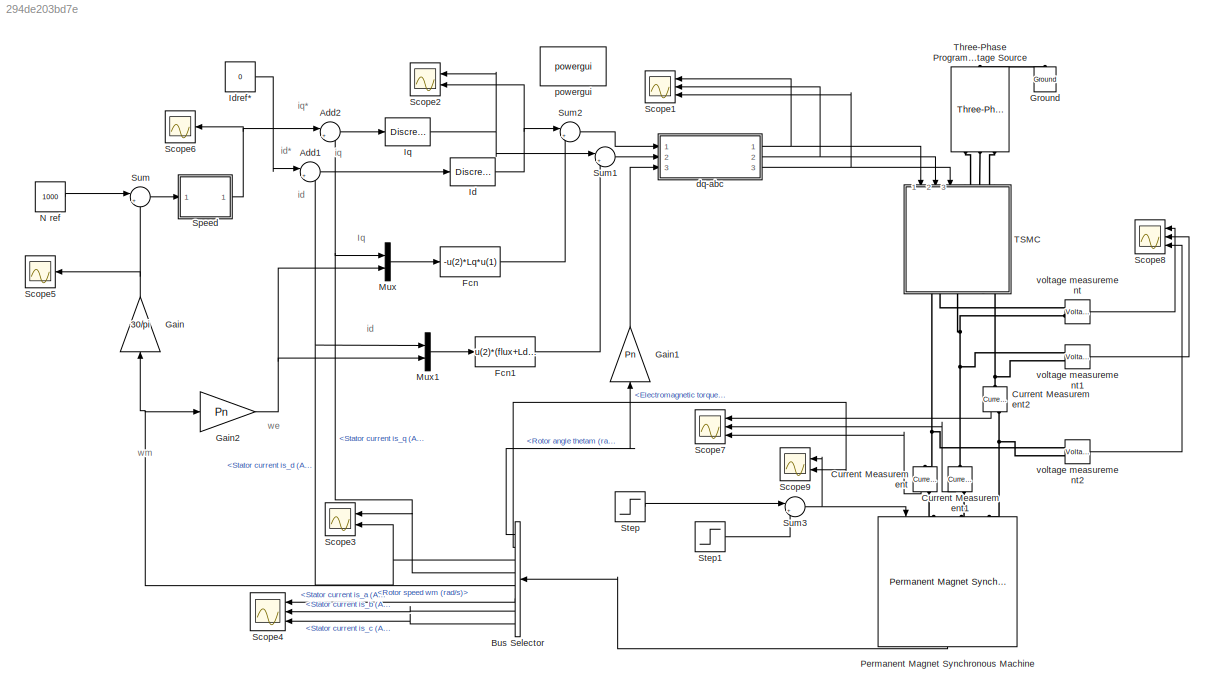
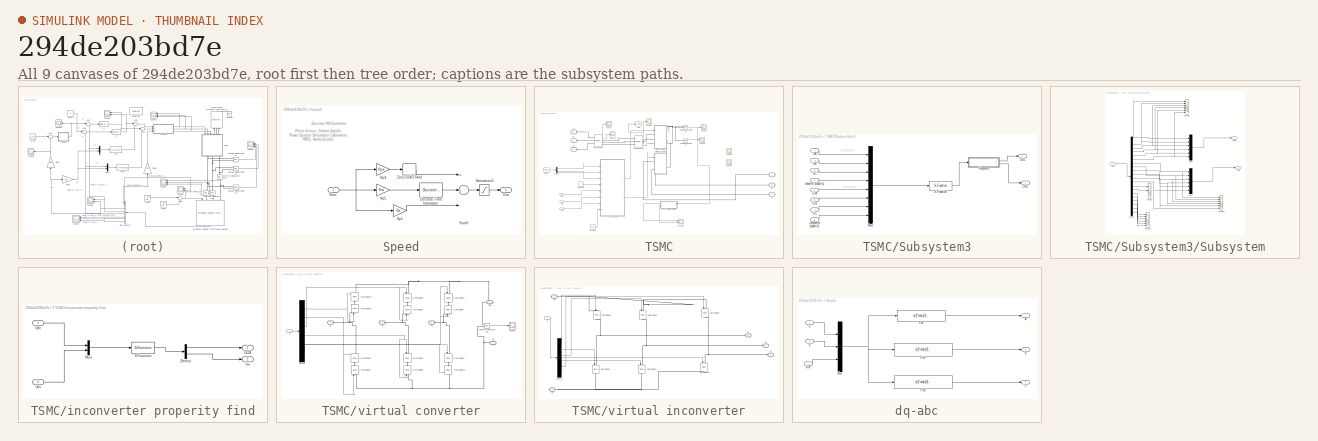
[diagram: thumbnail index - all 9 canvases of the model, root first then tree order]
MODEL slx_294de203bd7e
KIND model
CONFIG AbsTol = auto
CONFIG EnableMultiTasking = off
CONFIG FixedStep = auto
CONFIG InitFcn = Ts=10e-6;\nR=0.958;\nLd=5.25e-3;\nLq=12e-3;\nPn=4;\nflux=0.1827;
CONFIG MaxStep = auto
CONFIG MinStep = auto
CONFIG RelTol = 1e-4
CONFIG SampleTimeConstraint = Unconstrained
CONFIG Solver = ode15s
CONFIG SolverName = ode15s
CONFIG StartTime = 0.0
CONFIG StopTime = 0.6
BLOCK [Sum] Add1
  IconShape = round
  InputSameDT = off
  Inputs = |+-
  OutDataTypeStr = Inherit: Inherit via internal rule
  Ports = [2, 1]
  SaturateOnIntegerOverflow = off
BLOCK [Sum] Add2
  IconShape = round
  InputSameDT = off
  Inputs = |+-
  OutDataTypeStr = Inherit: Inherit via internal rule
  Ports = [2, 1]
  SaturateOnIntegerOverflow = off
BLOCK [BusSelector] Bus Selector
  OutputSignals = Rotor angle thetam (rad),Electromagnetic torque Te (N*m),Stator current is_d (A),Stator current is_q (A),Rotor speed wm (rad/s),Stator current is_a (A),Stator current is_b (A),Stator current is_c (A)
  Ports = [1, 8]
BLOCK [Reference] Current Measurement  REF=powerlib/Measurements/Current Measurement
  Ports = [0, 1, 0, 0, 0, 1, 1]
  SourceBlock = powerlib/Measurements/Current Measurement
  SourceType = Current Measurement
  UserDataPersistent = on
BLOCK [Reference] Current Measurement1  REF=powerlib/Measurements/Current Measurement
  Ports = [0, 1, 0, 0, 0, 1, 1]
  SourceBlock = powerlib/Measurements/Current Measurement
  SourceType = Current Measurement
  UserDataPersistent = on
BLOCK [Reference] Current Measurement2  REF=powerlib/Measurements/Current Measurement
  Ports = [0, 1, 0, 0, 0, 1, 1]
  SourceBlock = powerlib/Measurements/Current Measurement
  SourceType = Current Measurement
  UserDataPersistent = on
BLOCK [Fcn] Fcn
  Expr = -u(2)*Lq*u(1)
BLOCK [Fcn] Fcn1
  Expr = u(2)*(flux+Ld*u(1))
BLOCK [Gain] Gain
  Gain = 30/pi
  OutDataTypeStr = Inherit: Inherit via internal rule
  ParamDataTypeStr = Inherit: Inherit via internal rule
  SaturateOnIntegerOverflow = off
BLOCK [Gain] Gain1
  Gain = Pn
  OutDataTypeStr = Inherit: Inherit via internal rule
  ParamDataTypeStr = Inherit: Inherit via internal rule
  SaturateOnIntegerOverflow = off
BLOCK [Gain] Gain2
  Gain = Pn
  OutDataTypeStr = Inherit: Inherit via internal rule
  ParamDataTypeStr = Inherit: Inherit via internal rule
  SaturateOnIntegerOverflow = off
BLOCK [Reference] Ground  REF=powerlib/Elements/Ground
  Ports = [0, 0, 0, 0, 0, 1]
  SourceBlock = powerlib/Elements/Ground
  SourceType = Ground
BLOCK [Reference] Id  REF=powerlib_extras/Discrete 
Control Blocks/Discrete
PI Controller
  Ports = [1, 1]
  SourceBlock = powerlib_extras/Discrete \nControl Blocks/Discrete\nPI Controller
  SourceType = Discrete PI Controller
BLOCK [Constant] Idref*
  Value = 0
BLOCK [Reference] Iq  REF=powerlib_extras/Discrete 
Control Blocks/Discrete
PI Controller
  Ports = [1, 1]
  SourceBlock = powerlib_extras/Discrete \nControl Blocks/Discrete\nPI Controller
  SourceType = Discrete PI Controller
BLOCK [Mux] Mux
  DisplayOption = bar
  Inputs = 2
  Ports = [2, 1]
BLOCK [Mux] Mux1
  DisplayOption = bar
  Inputs = 2
  Ports = [2, 1]
BLOCK [Constant] N ref 
  Value = 1000
BLOCK [Reference] Permanent Magnet Synchronous Machine  REF=powerlib/Machines/Permanent Magnet
Synchronous Machine
  Ports = [1, 1, 0, 0, 0, 3]
  SourceBlock = powerlib/Machines/Permanent Magnet\nSynchronous Machine
  SourceType = Permanent Magnet Synchronous Machine
BLOCK [Scope] Scope1
  NumInputPorts = 3
  Ports = [3]
  ScopeSpecificationString = Simulink.scopes.TimeScopeBlockCfg('CurrentConfiguration', extmgr.ConfigurationSet(extmgr.Configuration('Core','General UI',true),extmgr.Configuration('Core','Source UI',true),extmgr.Configuration('Sources','WiredSimulink',true,'DataLoggingVariableName','ScopeData5'),extmgr.Configuration('Visuals','Time Domain',true,'SerializedDisplays',{struct('MinYLimReal','-300.71574','MaxYLimReal','295.02624','...<+1505ch>
BLOCK [Scope] Scope2
  NumInputPorts = 2
  Ports = [2]
  ScopeSpecificationString = Simulink.scopes.TimeScopeBlockCfg('CurrentConfiguration', extmgr.ConfigurationSet(extmgr.Configuration('Core','General UI',true),extmgr.Configuration('Core','Source UI',true),extmgr.Configuration('Sources','WiredSimulink',true,'DataLoggingVariableName','ScopeData7'),extmgr.Configuration('Visuals','Time Domain',true,'SerializedDisplays',{struct('MinYLimReal','-202.00043','MaxYLimReal','202.00043','...<+2016ch>
BLOCK [Scope] Scope3
  NumInputPorts = 2
  Ports = [2]
  ScopeSpecificationString = Simulink.scopes.TimeScopeBlockCfg('CurrentConfiguration', extmgr.ConfigurationSet(extmgr.Configuration('Core','General UI',true),extmgr.Configuration('Core','Source UI',true),extmgr.Configuration('Sources','WiredSimulink',true,'DataLoggingVariableName','ScopeData1'),extmgr.Configuration('Visuals','Time Domain',true,'SerializedDisplays',{struct('MinYLimReal','-18.64374','MaxYLimReal','24.1361','YLa...<+2029ch>
BLOCK [Scope] Scope4
  NumInputPorts = 3
  Ports = [3]
  ScopeSpecificationString = Simulink.scopes.TimeScopeBlockCfg('CurrentConfiguration', extmgr.ConfigurationSet(extmgr.Configuration('Core','General UI',true),extmgr.Configuration('Core','Source UI',true),extmgr.Configuration('Sources','WiredSimulink',true,'DataLoggingVariableName','ScopeData1'),extmgr.Configuration('Visuals','Time Domain',true,'SerializedDisplays',{struct('MinYLimReal','-41.06003','MaxYLimReal','35.53337','YL...<+1500ch>
BLOCK [Scope] Scope5
  NumInputPorts = 1
  Ports = [1]
  ScopeSpecificationString = Simulink.scopes.TimeScopeBlockCfg('CurrentConfiguration', extmgr.ConfigurationSet(extmgr.Configuration('Core','General UI',true),extmgr.Configuration('Core','Source UI',true),extmgr.Configuration('Sources','WiredSimulink',true,'DataLoggingVariableName','ScopeData2'),extmgr.Configuration('Visuals','Time Domain',true,'SerializedDisplays',{struct('MinYLimReal','-157.14677','MaxYLimReal','1411.26681',...<+1433ch>
BLOCK [Scope] Scope6
  NumInputPorts = 1
  Ports = [1]
  ScopeSpecificationString = Simulink.scopes.TimeScopeBlockCfg('CurrentConfiguration', extmgr.ConfigurationSet(extmgr.Configuration('Core','General UI',true),extmgr.Configuration('Core','Source UI',true),extmgr.Configuration('Sources','WiredSimulink',true,'DataLoggingVariableName','ScopeData3'),extmgr.Configuration('Visuals','Time Domain',true,'SerializedDisplays',{struct('MinYLimReal','-29.58622','MaxYLimReal','36.62069','YL...<+1422ch>
BLOCK [Scope] Scope7
  NumInputPorts = 3
  Ports = [3]
  ScopeSpecificationString = Simulink.scopes.TimeScopeBlockCfg('CurrentConfiguration', extmgr.ConfigurationSet(extmgr.Configuration('Core','General UI',true),extmgr.Configuration('Core','Source UI',true),extmgr.Configuration('Sources','WiredSimulink',true,'DataLoggingVariableName','ScopeData2','DataLoggingSaveFormat','Structure','DataLoggingDecimation','1','DataLoggingDecimateData',true,'DataLogging',true),extmgr.Configuratio...<+1623ch>
BLOCK [Scope] Scope8
  NumInputPorts = 3
  Ports = [3]
  ScopeSpecificationString = Simulink.scopes.TimeScopeBlockCfg('CurrentConfiguration', extmgr.ConfigurationSet(extmgr.Configuration('Core','General UI',true),extmgr.Configuration('Core','Source UI',true),extmgr.Configuration('Sources','WiredSimulink',true,'DataLoggingVariableName','ScopeData1','DataLoggingSaveFormat','Array','DataLoggingDecimation','1','DataLoggingDecimateData',true),extmgr.Configuration('Visuals','Time Domai...<+1608ch>
BLOCK [Scope] Scope9
  NumInputPorts = 2
  Ports = [2]
  ScopeSpecificationString = Simulink.scopes.TimeScopeBlockCfg('CurrentConfiguration', extmgr.ConfigurationSet(extmgr.Configuration('Core','General UI',true),extmgr.Configuration('Core','Source UI',true),extmgr.Configuration('Sources','WiredSimulink',true,'DataLoggingVariableName','ScopeData2'),extmgr.Configuration('Visuals','Time Domain',true,'SerializedDisplays',{struct('MinYLimReal','-10.08075','MaxYLimReal','23.01648','YL...<+1451ch>
BLOCK [SubSystem] Speed
  AncestorBlock = powerlib_extras/Discrete \nControl Blocks/Discrete\nPI Controller
  DialogController = POWERSYS.PowerSysDialog
  Ports = [1, 1]
  RequestExecContextInheritance = off
  Variant = off
BLOCK [DiscreteIntegrator] Speed/Discrete-Time Integrator
  ICPrevOutput = DiscIntNeverNeededParam
  ICPrevScaledInput = DiscIntNeverNeededParam
  InitialCondition = Init
  LimitOutput = on
  LowerSaturationLimit = LowerLimit
  Ports = [1, 1]
  SampleTime = Ts
  UpperSaturationLimit = UpperLimit
BLOCK [Inport] Speed/Error
  IconDisplay = Port number
  SampleTime = Ts
BLOCK [Gain] Speed/Kp1
  Gain = Ba
  SampleTime = Ts
BLOCK [Gain] Speed/Kp4
  Gain = Kpw
  SampleTime = Ts
BLOCK [Gain] Speed/Kp5
  Gain = Kiw
  SampleTime = Ts
BLOCK [Outport] Speed/Out
  IconDisplay = Port number
  InitialOutput = 0
  SampleTime = Ts
BLOCK [Saturate] Speed/Saturation2
  InputPortMap = u0
  LowerLimit = LowerLimit
  Ports = [1, 1]
  SampleTime = Ts
  UpperLimit = UpperLimit
BLOCK [Sum] Speed/Sum6
  Inputs = ++-
  Ports = [3, 1]
  SampleTime = Ts
BLOCK [ZeroOrderHold] Speed/Zero-Order Hold
  SampleTime = Ts
BLOCK [Step] Step
  After = 10
  Before = 1
  SampleTime = Ts
  Time = 0.2
BLOCK [Step] Step1
  After = 3
  SampleTime = Ts
  Time = 0.4
BLOCK [Sum] Sum
  IconShape = round
  InputSameDT = off
  Inputs = |+-
  OutDataTypeStr = Inherit: Inherit via internal rule
  Ports = [2, 1]
  SaturateOnIntegerOverflow = off
BLOCK [Sum] Sum1
  IconShape = round
  InputSameDT = off
  Inputs = |++
  OutDataTypeStr = Inherit: Inherit via internal rule
  Ports = [2, 1]
  SaturateOnIntegerOverflow = off
BLOCK [Sum] Sum2
  IconShape = round
  InputSameDT = off
  Inputs = |++
  OutDataTypeStr = Inherit: Inherit via internal rule
  Ports = [2, 1]
  SaturateOnIntegerOverflow = off
BLOCK [Sum] Sum3
  IconShape = round
  InputSameDT = off
  Inputs = |+-
  OutDataTypeStr = Inherit: Inherit via internal rule
  Ports = [2, 1]
  SaturateOnIntegerOverflow = off
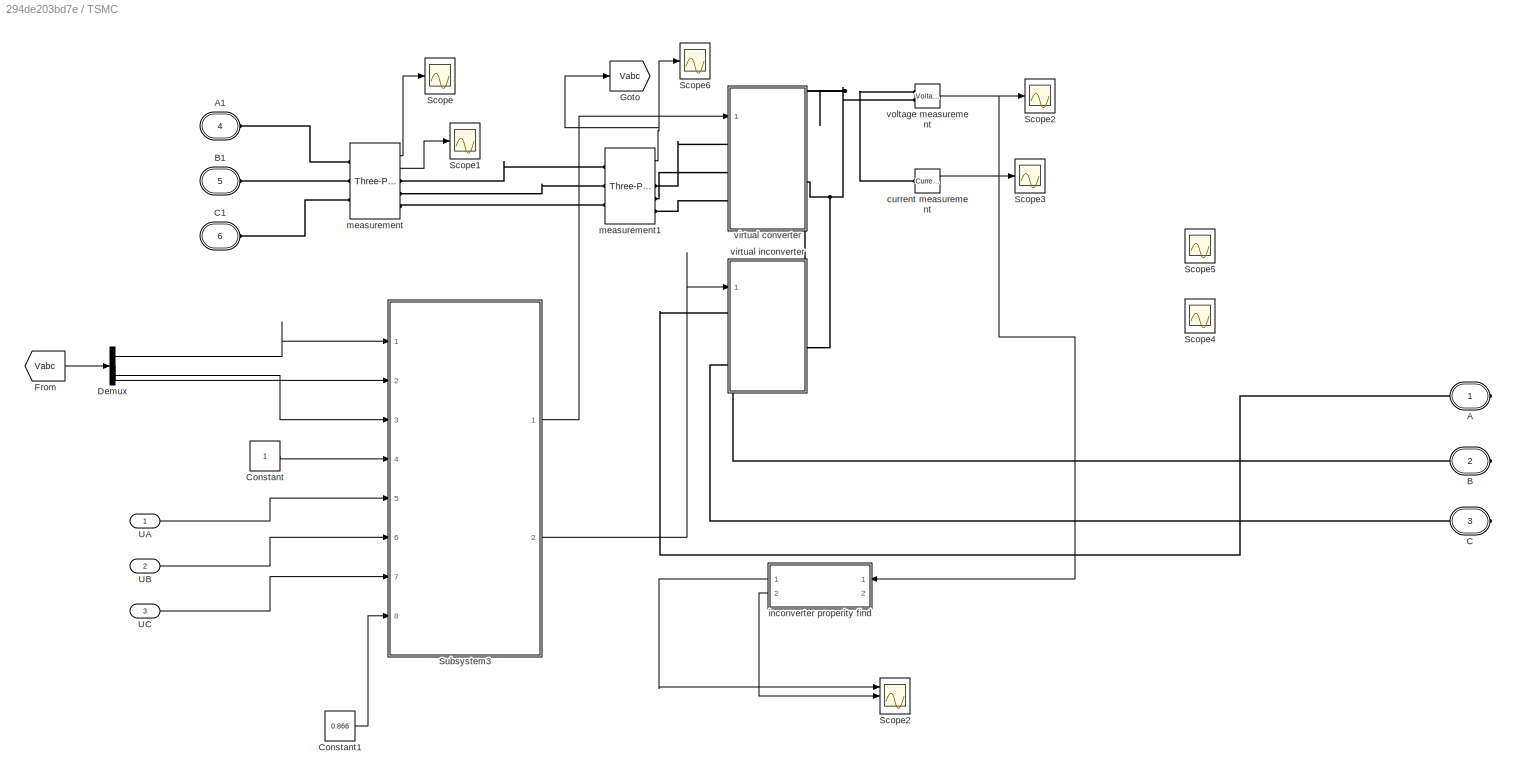
BLOCK [SubSystem] TSMC
  Ports = [3, 0, 0, 0, 0, 3, 3]
  RequestExecContextInheritance = off
  Variant = off
BLOCK [PMIOPort] TSMC/A
  Port = 1
  Side = Right
  Tag = PMCPort
BLOCK [PMIOPort] TSMC/A1
  Port = 4
  Side = Left
  Tag = PMCPort
BLOCK [PMIOPort] TSMC/B
  Port = 2
  Side = Right
  Tag = PMCPort
BLOCK [PMIOPort] TSMC/B1
  Port = 5
  Side = Left
  Tag = PMCPort
BLOCK [PMIOPort] TSMC/C
  Port = 3
  Side = Right
  Tag = PMCPort
BLOCK [PMIOPort] TSMC/C1
  Port = 6
  Side = Left
  Tag = PMCPort
BLOCK [Constant] TSMC/Constant
BLOCK [Constant] TSMC/Constant1
  Value = 0.866
BLOCK [Demux] TSMC/Demux
  DisplayOption = bar
  Outputs = 3
  Ports = [1, 3]
BLOCK [From] TSMC/From
  GotoTag = Vabc
BLOCK [Goto] TSMC/Goto
  GotoTag = Vabc
BLOCK [Scope] TSMC/Scope
  NumInputPorts = 1
  Ports = [1]
  ScopeSpecificationString = Simulink.scopes.TimeScopeBlockCfg('CurrentConfiguration', extmgr.ConfigurationSet(extmgr.Configuration('Core','General UI',true),extmgr.Configuration('Core','Source UI',true),extmgr.Configuration('Sources','WiredSimulink',true,'DataLoggingVariableName','ScopeData1','DataLoggingSaveFormat','Array','DataLoggingDecimation','1','DataLoggingDecimateData',true),extmgr.Configuration('Visuals','Time Domai...<+1555ch>
BLOCK [Scope] TSMC/Scope1
  NumInputPorts = 1
  Ports = [1]
  ScopeSpecificationString = Simulink.scopes.TimeScopeBlockCfg('CurrentConfiguration', extmgr.ConfigurationSet(extmgr.Configuration('Core','General UI',true),extmgr.Configuration('Core','Source UI',true),extmgr.Configuration('Sources','WiredSimulink',true,'DataLoggingVariableName','ScopeData2','DataLoggingSaveFormat','Array','DataLoggingDecimation','1','DataLoggingDecimateData',true),extmgr.Configuration('Visuals','Time Domai...<+1574ch>
BLOCK [Scope] TSMC/Scope2
  NumInputPorts = 3
  Ports = [3]
  ScopeSpecificationString = Simulink.scopes.TimeScopeBlockCfg('CurrentConfiguration', extmgr.ConfigurationSet(extmgr.Configuration('Core','General UI',true),extmgr.Configuration('Core','Source UI',true),extmgr.Configuration('Sources','WiredSimulink',true,'DataLoggingVariableName','ScopeData1','DataLoggingSaveFormat','Array','DataLoggingDecimation','1','DataLoggingDecimateData',true),extmgr.Configuration('Visuals','Time Domai...<+2568ch>
BLOCK [Scope] TSMC/Scope2 
  NumInputPorts = 1
  Ports = [1]
  ScopeSpecificationString = Simulink.scopes.TimeScopeBlockCfg('CurrentConfiguration', extmgr.ConfigurationSet(extmgr.Configuration('Core','General UI',true),extmgr.Configuration('Core','Source UI',true),extmgr.Configuration('Sources','WiredSimulink',true,'DataLoggingVariableName','ScopeData3','DataLoggingSaveFormat','Array','DataLoggingDecimation','1','DataLoggingDecimateData',true),extmgr.Configuration('Visuals','Time Domai...<+1556ch>
BLOCK [Scope] TSMC/Scope3
  NumInputPorts = 1
  Ports = [1]
  ScopeSpecificationString = Simulink.scopes.TimeScopeBlockCfg('CurrentConfiguration', extmgr.ConfigurationSet(extmgr.Configuration('Core','General UI',true),extmgr.Configuration('Core','Source UI',true),extmgr.Configuration('Sources','WiredSimulink',true,'DataLoggingVariableName','ScopeData4','DataLoggingSaveFormat','Array','DataLoggingDecimation','1','DataLoggingDecimateData',true),extmgr.Configuration('Visuals','Time Domai...<+1574ch>
BLOCK [Scope] TSMC/Scope4
  NumInputPorts = 1
  Ports = [1]
  ScopeSpecificationString = Simulink.scopes.TimeScopeBlockCfg('CurrentConfiguration', extmgr.ConfigurationSet(extmgr.Configuration('Core','General UI',true),extmgr.Configuration('Core','Source UI',true),extmgr.Configuration('Sources','WiredSimulink',true,'DataLoggingVariableName','ScopeData5','DataLoggingSaveFormat','Array','DataLoggingDecimation','1','DataLoggingDecimateData',true),extmgr.Configuration('Visuals','Time Domai...<+1577ch>
BLOCK [Scope] TSMC/Scope5
  NumInputPorts = 1
  Ports = [1]
  ScopeSpecificationString = Simulink.scopes.TimeScopeBlockCfg('CurrentConfiguration', extmgr.ConfigurationSet(extmgr.Configuration('Core','General UI',true),extmgr.Configuration('Core','Source UI',true),extmgr.Configuration('Sources','WiredSimulink',true,'DataLoggingVariableName','ScopeData6','DataLoggingSaveFormat','Array','DataLoggingDecimation','1','DataLoggingDecimateData',true),extmgr.Configuration('Visuals','Time Domai...<+1511ch>
BLOCK [Scope] TSMC/Scope6
  NumInputPorts = 1
  Ports = [1]
  ScopeSpecificationString = Simulink.scopes.TimeScopeBlockCfg('CurrentConfiguration', extmgr.ConfigurationSet(extmgr.Configuration('Core','General UI',true),extmgr.Configuration('Core','Source UI',true),extmgr.Configuration('Sources','WiredSimulink',true,'DataLoggingVariableName','ScopeData1'),extmgr.Configuration('Visuals','Time Domain',true,'SerializedDisplays',{struct('MinYLimReal','-1810.81836','MaxYLimReal','1653.34708'...<+1477ch>
BLOCK [SubSystem] TSMC/Subsystem3
  Ports = [8, 2]
  RequestExecContextInheritance = off
  Variant = off
BLOCK [Mux] TSMC/Subsystem3/Mux1
  DisplayOption = bar
  Inputs = 8
  Ports = [8, 1]
BLOCK [Outport] TSMC/Subsystem3/Out1
  IconDisplay = Port number
BLOCK [Outport] TSMC/Subsystem3/Out2
  IconDisplay = Port number
  Port = 2
BLOCK [S-Function] TSMC/Subsystem3/S-Function
  EnableBusSupport = off
  FunctionName = lh5
  Ports = [1, 1]
  SFcnIsStateOwnerBlock = off
  SFunctionDeploymentMode = off
BLOCK [SubSystem] TSMC/Subsystem3/Subsystem
  Ports = [1, 2]
  RequestExecContextInheritance = off
  Variant = off
BLOCK [Demux] TSMC/Subsystem3/Subsystem/Demux
  DisplayOption = bar
  Outputs = 20
  Ports = [1, 20]
BLOCK [Inport] TSMC/Subsystem3/Subsystem/In1
  IconDisplay = Port number
BLOCK [Mux] TSMC/Subsystem3/Subsystem/Mux
  DisplayOption = bar
  Inputs = 6
  Ports = [6, 1]
BLOCK [Mux] TSMC/Subsystem3/Subsystem/Mux1
  DisplayOption = bar
  Inputs = 6
  Ports = [6, 1]
BLOCK [Outport] TSMC/Subsystem3/Subsystem/Out1
  IconDisplay = Port number
BLOCK [Outport] TSMC/Subsystem3/Subsystem/Out2
  IconDisplay = Port number
  Port = 2
BLOCK [Scope] TSMC/Subsystem3/Subsystem/Scope1
  NumInputPorts = 6
  Ports = [6]
  ScopeSpecificationString = Simulink.scopes.TimeScopeBlockCfg('CurrentConfiguration', extmgr.ConfigurationSet(extmgr.Configuration('Core','General UI',true),extmgr.Configuration('Core','Source UI',true),extmgr.Configuration('Sources','WiredSimulink',true,'DataLoggingVariableName','ScopeData4'),extmgr.Configuration('Visuals','Time Domain',true,'SerializedDisplays',{struct('MinYLimReal','-0.125','MaxYLimReal','1.125','YLabelRe...<+5066ch>
BLOCK [Scope] TSMC/Subsystem3/Subsystem/Scope2
  NumInputPorts = 6
  Ports = [6]
  ScopeSpecificationString = Simulink.scopes.TimeScopeBlockCfg('CurrentConfiguration', extmgr.ConfigurationSet(extmgr.Configuration('Core','General UI',true),extmgr.Configuration('Core','Source UI',true),extmgr.Configuration('Sources','WiredSimulink',true,'DataLoggingVariableName','ScopeData1'),extmgr.Configuration('Visuals','Time Domain',true,'SerializedDisplays',{struct('MinYLimReal','-0.125','MaxYLimReal','1.125','YLabelRe...<+5236ch>
BLOCK [Scope] TSMC/Subsystem3/Subsystem/Scope3
  NumInputPorts = 3
  Ports = [3]
  ScopeSpecificationString = Simulink.scopes.TimeScopeBlockCfg('CurrentConfiguration', extmgr.ConfigurationSet(extmgr.Configuration('Core','General UI',true),extmgr.Configuration('Core','Source UI',true),extmgr.Configuration('Sources','WiredSimulink',true,'DataLoggingVariableName','ScopeData2'),extmgr.Configuration('Visuals','Time Domain',true,'SerializedDisplays',{struct('MinYLimReal','0.375','MaxYLimReal','6.625','YLabelRea...<+3071ch>
BLOCK [Scope] TSMC/Subsystem3/Subsystem/Scope4
  NumInputPorts = 6
  Ports = [6]
  ScopeSpecificationString = Simulink.scopes.TimeScopeBlockCfg('CurrentConfiguration', extmgr.ConfigurationSet(extmgr.Configuration('Core','General UI',true),extmgr.Configuration('Core','Source UI',true),extmgr.Configuration('Sources','WiredSimulink',true,'DataLoggingVariableName','ScopeData1'),extmgr.Configuration('Visuals','Time Domain',true,'SerializedDisplays',{struct('MinYLimReal','-275.00000','MaxYLimReal','275.00000','...<+5238ch>
BLOCK [Inport] TSMC/Subsystem3/UA
  IconDisplay = Port number
BLOCK [Inport] TSMC/Subsystem3/UB
  IconDisplay = Port number
  Port = 2
BLOCK [Inport] TSMC/Subsystem3/UC
  IconDisplay = Port number
  Port = 3
BLOCK [Inport] TSMC/Subsystem3/UiA
  IconDisplay = Port number
  Port = 5
BLOCK [Inport] TSMC/Subsystem3/UiB
  IconDisplay = Port number
  Port = 6
BLOCK [Inport] TSMC/Subsystem3/UiC
  IconDisplay = Port number
  Port = 7
BLOCK [Inport] TSMC/Subsystem3/converter properity
  IconDisplay = Port number
  Port = 4
BLOCK [Inport] TSMC/Subsystem3/inconverter properity
  IconDisplay = Port number
  Port = 8
BLOCK [Inport] TSMC/UA
  IconDisplay = Port number
BLOCK [Inport] TSMC/UB
  IconDisplay = Port number
  Port = 2
BLOCK [Inport] TSMC/UC
  IconDisplay = Port number
  Port = 3
BLOCK [Reference] TSMC/current measurement  REF=powerlib/Measurements/Current Measurement
  Ports = [0, 1, 0, 0, 0, 1, 1]
  SourceBlock = powerlib/Measurements/Current Measurement
  SourceType = Current Measurement
BLOCK [SubSystem] TSMC/inconverter properity find
  Ports = [2, 2]
  RequestExecContextInheritance = off
  Variant = off
BLOCK [Demux] TSMC/inconverter properity find/Demux
  DisplayOption = bar
  Outputs = 2
  Ports = [1, 2]
BLOCK [Mux] TSMC/inconverter properity find/Mux
  DisplayOption = bar
  Inputs = 2
  Ports = [2, 1]
BLOCK [S-Function] TSMC/inconverter properity find/S-Function
  EnableBusSupport = off
  FunctionName = FindM
  Ports = [1, 1]
  SFcnIsStateOwnerBlock = off
  SFunctionDeploymentMode = off
BLOCK [Inport] TSMC/inconverter properity find/UIm
  IconDisplay = Port number
  Port = 2
BLOCK [Outport] TSMC/inconverter properity find/ULM
  IconDisplay = Port number
BLOCK [Inport] TSMC/inconverter properity find/Udc
  IconDisplay = Port number
BLOCK [Outport] TSMC/inconverter properity find/mv
  IconDisplay = Port number
  Port = 2
BLOCK [Reference] TSMC/measurement  REF=powerlib/Measurements/Three-Phase
V-I Measurement
  Ports = [0, 2, 0, 0, 0, 3, 3]
  SourceBlock = powerlib/Measurements/Three-Phase\nV-I Measurement
  SourceType = Three-Phase VI Measurement
BLOCK [Reference] TSMC/measurement1  REF=powerlib/Measurements/Three-Phase
V-I Measurement
  Ports = [0, 2, 0, 0, 0, 3, 3]
  SourceBlock = powerlib/Measurements/Three-Phase\nV-I Measurement
  SourceType = Three-Phase VI Measurement
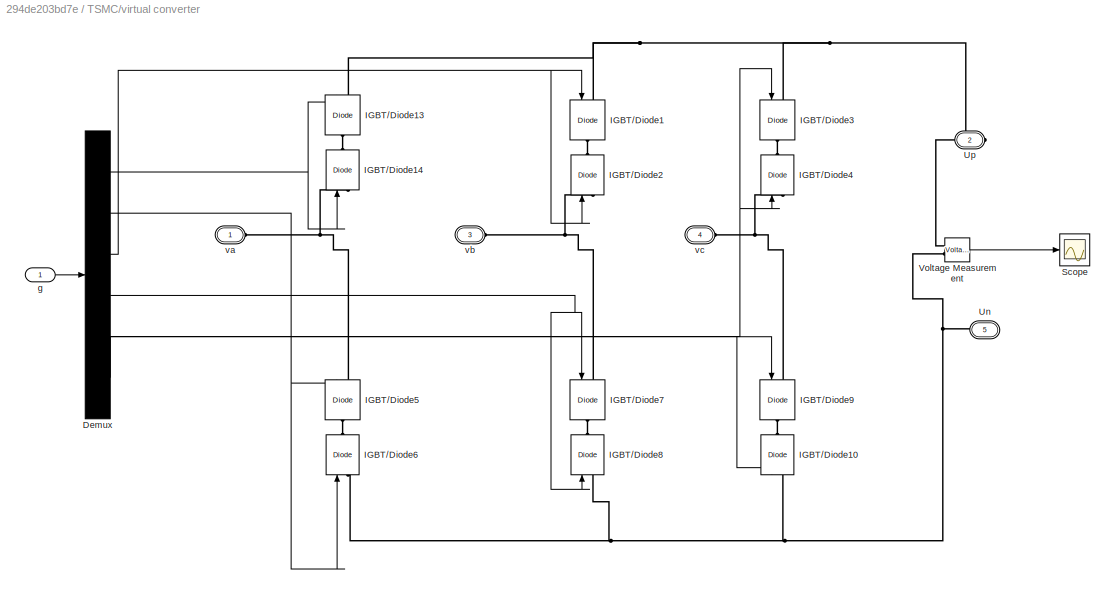
BLOCK [SubSystem] TSMC/virtual converter
  Ports = [1, 0, 0, 0, 0, 3, 2]
  RequestExecContextInheritance = off
  Variant = off
BLOCK [Demux] TSMC/virtual converter/Demux
  DisplayOption = bar
  Outputs = 6
  Ports = [1, 6]
BLOCK [Reference] TSMC/virtual converter/IGBT//Diode1  REF=powerlib/Power
Electronics/IGBT//Diode
  Ports = [1, 0, 0, 0, 0, 1, 1]
  SourceBlock = powerlib/Power\nElectronics/IGBT//Diode
  SourceType = IGBT/Diode
BLOCK [Reference] TSMC/virtual converter/IGBT//Diode10  REF=powerlib/Power
Electronics/IGBT//Diode
  Ports = [1, 0, 0, 0, 0, 1, 1]
  SourceBlock = powerlib/Power\nElectronics/IGBT//Diode
  SourceType = IGBT/Diode
BLOCK [Reference] TSMC/virtual converter/IGBT//Diode13  REF=powerlib/Power
Electronics/IGBT//Diode
  Ports = [1, 0, 0, 0, 0, 1, 1]
  SourceBlock = powerlib/Power\nElectronics/IGBT//Diode
  SourceType = IGBT/Diode
BLOCK [Reference] TSMC/virtual converter/IGBT//Diode14  REF=powerlib/Power
Electronics/IGBT//Diode
  Ports = [1, 0, 0, 0, 0, 1, 1]
  SourceBlock = powerlib/Power\nElectronics/IGBT//Diode
  SourceType = IGBT/Diode
BLOCK [Reference] TSMC/virtual converter/IGBT//Diode2  REF=powerlib/Power
Electronics/IGBT//Diode
  Ports = [1, 0, 0, 0, 0, 1, 1]
  SourceBlock = powerlib/Power\nElectronics/IGBT//Diode
  SourceType = IGBT/Diode
BLOCK [Reference] TSMC/virtual converter/IGBT//Diode3  REF=powerlib/Power
Electronics/IGBT//Diode
  Ports = [1, 0, 0, 0, 0, 1, 1]
  SourceBlock = powerlib/Power\nElectronics/IGBT//Diode
  SourceType = IGBT/Diode
BLOCK [Reference] TSMC/virtual converter/IGBT//Diode4  REF=powerlib/Power
Electronics/IGBT//Diode
  Ports = [1, 0, 0, 0, 0, 1, 1]
  SourceBlock = powerlib/Power\nElectronics/IGBT//Diode
  SourceType = IGBT/Diode
BLOCK [Reference] TSMC/virtual converter/IGBT//Diode5  REF=powerlib/Power
Electronics/IGBT//Diode
  Ports = [1, 0, 0, 0, 0, 1, 1]
  SourceBlock = powerlib/Power\nElectronics/IGBT//Diode
  SourceType = IGBT/Diode
BLOCK [Reference] TSMC/virtual converter/IGBT//Diode6  REF=powerlib/Power
Electronics/IGBT//Diode
  Ports = [1, 0, 0, 0, 0, 1, 1]
  SourceBlock = powerlib/Power\nElectronics/IGBT//Diode
  SourceType = IGBT/Diode
BLOCK [Reference] TSMC/virtual converter/IGBT//Diode7  REF=powerlib/Power
Electronics/IGBT//Diode
  Ports = [1, 0, 0, 0, 0, 1, 1]
  SourceBlock = powerlib/Power\nElectronics/IGBT//Diode
  SourceType = IGBT/Diode
BLOCK [Reference] TSMC/virtual converter/IGBT//Diode8  REF=powerlib/Power
Electronics/IGBT//Diode
  Ports = [1, 0, 0, 0, 0, 1, 1]
  SourceBlock = powerlib/Power\nElectronics/IGBT//Diode
  SourceType = IGBT/Diode
BLOCK [Reference] TSMC/virtual converter/IGBT//Diode9  REF=powerlib/Power
Electronics/IGBT//Diode
  Ports = [1, 0, 0, 0, 0, 1, 1]
  SourceBlock = powerlib/Power\nElectronics/IGBT//Diode
  SourceType = IGBT/Diode
BLOCK [Scope] TSMC/virtual converter/Scope
  NumInputPorts = 1
  Ports = [1]
  ScopeSpecificationString = Simulink.scopes.TimeScopeBlockCfg('CurrentConfiguration', extmgr.ConfigurationSet(extmgr.Configuration('Core','General UI',true),extmgr.Configuration('Core','Source UI',true),extmgr.Configuration('Sources','WiredSimulink',true,'DataLoggingVariableName','ScopeData1'),extmgr.Configuration('Visuals','Time Domain',true,'SerializedDisplays',{struct('MinYLimReal','-0.80821','MaxYLimReal','3.23327','YLab...<+1403ch>
BLOCK [PMIOPort] TSMC/virtual converter/Un
  Port = 5
  Side = Right
  Tag = PMCPort
BLOCK [PMIOPort] TSMC/virtual converter/Up
  Port = 2
  Side = Right
  Tag = PMCPort
BLOCK [Reference] TSMC/virtual converter/Voltage Measurement  REF=powerlib/Measurements/Voltage Measurement
  Ports = [0, 1, 0, 0, 0, 2]
  SourceBlock = powerlib/Measurements/Voltage Measurement
  SourceType = Voltage Measurement
  UserDataPersistent = on
BLOCK [Inport] TSMC/virtual converter/g
  IconDisplay = Port number
BLOCK [PMIOPort] TSMC/virtual converter/va
  Port = 1
  Side = Left
  Tag = PMCPort
BLOCK [PMIOPort] TSMC/virtual converter/vb
  Port = 3
  Side = Left
  Tag = PMCPort
BLOCK [PMIOPort] TSMC/virtual converter/vc
  Port = 4
  Side = Left
  Tag = PMCPort
BLOCK [SubSystem] TSMC/virtual inconverter
  Ports = [1, 0, 0, 0, 0, 3, 2]
  RequestExecContextInheritance = off
  Variant = off
BLOCK [Demux] TSMC/virtual inconverter/Demux
  DisplayOption = bar
  Outputs = 6
  Ports = [1, 6]
BLOCK [Reference] TSMC/virtual inconverter/IGBT//Diode1  REF=powerlib/Power
Electronics/IGBT//Diode
  Ports = [1, 0, 0, 0, 0, 1, 1]
  SourceBlock = powerlib/Power\nElectronics/IGBT//Diode
  SourceType = IGBT/Diode
BLOCK [Reference] TSMC/virtual inconverter/IGBT//Diode2  REF=powerlib/Power
Electronics/IGBT//Diode
  Ports = [1, 0, 0, 0, 0, 1, 1]
  SourceBlock = powerlib/Power\nElectronics/IGBT//Diode
  SourceType = IGBT/Diode
BLOCK [Reference] TSMC/virtual inconverter/IGBT//Diode3  REF=powerlib/Power
Electronics/IGBT//Diode
  Ports = [1, 0, 0, 0, 0, 1, 1]
  SourceBlock = powerlib/Power\nElectronics/IGBT//Diode
  SourceType = IGBT/Diode
BLOCK [Reference] TSMC/virtual inconverter/IGBT//Diode4  REF=powerlib/Power
Electronics/IGBT//Diode
  Ports = [1, 0, 0, 0, 0, 1, 1]
  SourceBlock = powerlib/Power\nElectronics/IGBT//Diode
  SourceType = IGBT/Diode
BLOCK [Reference] TSMC/virtual inconverter/IGBT//Diode5  REF=powerlib/Power
Electronics/IGBT//Diode
  Ports = [1, 0, 0, 0, 0, 1, 1]
  SourceBlock = powerlib/Power\nElectronics/IGBT//Diode
  SourceType = IGBT/Diode
BLOCK [Reference] TSMC/virtual inconverter/IGBT//Diode6  REF=powerlib/Power
Electronics/IGBT//Diode
  Ports = [1, 0, 0, 0, 0, 1, 1]
  SourceBlock = powerlib/Power\nElectronics/IGBT//Diode
  SourceType = IGBT/Diode
BLOCK [PMIOPort] TSMC/virtual inconverter/Un
  Port = 2
  Side = Right
  Tag = PMCPort
BLOCK [PMIOPort] TSMC/virtual inconverter/Up
  Port = 1
  Side = Right
  Tag = PMCPort
BLOCK [Inport] TSMC/virtual inconverter/g
  IconDisplay = Port number
BLOCK [PMIOPort] TSMC/virtual inconverter/va
  Port = 3
  Side = Left
  Tag = PMCPort
BLOCK [PMIOPort] TSMC/virtual inconverter/vb
  Port = 4
  Side = Left
  Tag = PMCPort
BLOCK [PMIOPort] TSMC/virtual inconverter/vc
  Port = 5
  Side = Left
  Tag = PMCPort
BLOCK [Reference] TSMC/voltage measurement  REF=powerlib/Measurements/Voltage Measurement
  Ports = [0, 1, 0, 0, 0, 2]
  SourceBlock = powerlib/Measurements/Voltage Measurement
  SourceType = Voltage Measurement
BLOCK [Reference] Three-Phase Programmable Voltage Source  REF=powerlib/Electrical
Sources/Three-Phase
Programmable
Voltage Source
  Ports = [0, 0, 0, 0, 0, 1, 3]
  SourceBlock = powerlib/Electrical\nSources/Three-Phase\nProgrammable\nVoltage Source
  SourceType = Three-Phase Programmable Voltage Source
BLOCK [SubSystem] dq-abc
  Ports = [3, 3]
  RequestExecContextInheritance = off
  Variant = off
BLOCK [Outport] dq-abc/A 
  IconDisplay = Port number
BLOCK [Outport] dq-abc/B 
  IconDisplay = Port number
  Port = 2
BLOCK [Outport] dq-abc/C 
  IconDisplay = Port number
  Port = 3
BLOCK [Fcn] dq-abc/Fcn
  Expr = u(1)*cos(u(3))-u(2)*sin(u(3))
BLOCK [Fcn] dq-abc/Fcn1
  Expr = u(1)*cos(u(3)-2/3*pi)-u(2)*sin(u(3)-2/3*pi)
BLOCK [Fcn] dq-abc/Fcn2
  Expr = u(1)*cos(u(3)+2/3*pi)-u(2)*sin(u(3)+2/3*pi)
BLOCK [Mux] dq-abc/Mux
  DisplayOption = bar
  Inputs = 3
  Ports = [3, 1]
BLOCK [Inport] dq-abc/d
  IconDisplay = Port number
BLOCK [Inport] dq-abc/q
  IconDisplay = Port number
  Port = 2
BLOCK [Inport] dq-abc/sita
  IconDisplay = Port number
  Port = 3
BLOCK [Reference] powergui  REF=powerlib/powergui
  Ports = []
  Priority = 1
  SourceBlock = powerlib/powergui
  SourceType = PSB option menu block
BLOCK [Reference] voltage measurement  REF=powerlib/Measurements/Voltage Measurement
  Ports = [0, 1, 0, 0, 0, 2]
  SourceBlock = powerlib/Measurements/Voltage Measurement
  SourceType = Voltage Measurement
BLOCK [Reference] voltage measurement1  REF=powerlib/Measurements/Voltage Measurement
  Ports = [0, 1, 0, 0, 0, 2]
  SourceBlock = powerlib/Measurements/Voltage Measurement
  SourceType = Voltage Measurement
BLOCK [Reference] voltage measurement2  REF=powerlib/Measurements/Voltage Measurement
  Ports = [0, 1, 0, 0, 0, 2]
  SourceBlock = powerlib/Measurements/Voltage Measurement
  SourceType = Voltage Measurement
ANNOTATION (root): wm
ANNOTATION (root): Iq
ANNOTATION (root): id
ANNOTATION (root): id*
ANNOTATION (root): iq
ANNOTATION (root): iq*
ANNOTATION (root): we
ANNOTATION Speed: Discrete PID Controller
ANNOTATION Speed: Pierre Giroux, Gilbert Sybille Power System Simulation Laboratory IREQ, Hydro-Quebc
ANNOTATION TSMC/Subsystem3: 逆变器输入电压
ANNOTATION TSMC/Subsystem3: 逆变器输入电流
LINE Add1:1 -> Id:1
LINE Add2:1 -> Iq:1
LINE Bus Selector:1 -> Gain1:1
LINE Bus Selector:2 -> Scope9:2
NET Bus Selector:3 -> Add1:2, Mux1:1, Scope3:2
NET Bus Selector:4 -> Add2:2, Mux:1, Scope3:1
NET Bus Selector:5 -> Gain2:1, Gain:1
LINE Bus Selector:6 -> Scope4:1
LINE Bus Selector:7 -> Scope4:2
LINE Bus Selector:8 -> Scope4:3
LINE Current Measurement1:1 -> Scope7:2
LINE Current Measurement2:1 -> Scope7:1
LINE Current Measurement:1 -> Scope7:3
LINE Fcn1:1 -> Sum1:2
LINE Fcn:1 -> Sum2:2
LINE Gain1:1 -> dq-abc:3
NET Gain2:1 -> Mux1:2, Mux:2
NET Gain:1 -> Scope5:1, Sum:2
NET Id:1 -> Scope2:2, Sum2:1
LINE Idref*:1 -> Add1:1
NET Iq:1 -> Scope2:1, Sum1:1
LINE Mux1:1 -> Fcn1:1
LINE Mux:1 -> Fcn:1
LINE N ref :1 -> Sum:1
LINE Permanent Magnet Synchronous Machine:1 -> Bus Selector:1
NET Speed:1 -> Add2:1, Scope6:1
LINE Step1:1 -> Sum3:2
LINE Step:1 -> Sum3:1
LINE Sum1:1 -> dq-abc:2
LINE Sum2:1 -> dq-abc:1
NET Sum3:1 -> Permanent Magnet Synchronous Machine:1, Scope9:1
LINE Sum:1 -> Speed:1
LINE TSMC/Constant1:1 -> TSMC/Subsystem3:8
LINE TSMC/Constant:1 -> TSMC/Subsystem3:4
LINE TSMC/Demux:1 -> TSMC/Subsystem3:1
LINE TSMC/Demux:2 -> TSMC/Subsystem3:2
LINE TSMC/Demux:3 -> TSMC/Subsystem3:3
LINE TSMC/From:1 -> TSMC/Demux:1
LINE TSMC/Subsystem3/Mux1:1 -> TSMC/Subsystem3/S-Function:1
LINE TSMC/Subsystem3/S-Function:1 -> TSMC/Subsystem3/Subsystem:1
NET TSMC/Subsystem3/Subsystem/Demux:1 -> TSMC/Subsystem3/Subsystem/Mux:1, TSMC/Subsystem3/Subsystem/Scope1:1
NET TSMC/Subsystem3/Subsystem/Demux:10 -> TSMC/Subsystem3/Subsystem/Mux1:4, TSMC/Subsystem3/Subsystem/Scope2:4
NET TSMC/Subsystem3/Subsystem/Demux:11 -> TSMC/Subsystem3/Subsystem/Mux1:5, TSMC/Subsystem3/Subsystem/Scope2:5
NET TSMC/Subsystem3/Subsystem/Demux:12 -> TSMC/Subsystem3/Subsystem/Mux1:6, TSMC/Subsystem3/Subsystem/Scope2:6
LINE TSMC/Subsystem3/Subsystem/Demux:13 -> TSMC/Subsystem3/Subsystem/Scope3:1
LINE TSMC/Subsystem3/Subsystem/Demux:14 -> TSMC/Subsystem3/Subsystem/Scope3:2
LINE TSMC/Subsystem3/Subsystem/Demux:15 -> TSMC/Subsystem3/Subsystem/Scope4:1
LINE TSMC/Subsystem3/Subsystem/Demux:16 -> TSMC/Subsystem3/Subsystem/Scope4:2
LINE TSMC/Subsystem3/Subsystem/Demux:17 -> TSMC/Subsystem3/Subsystem/Scope4:3
LINE TSMC/Subsystem3/Subsystem/Demux:18 -> TSMC/Subsystem3/Subsystem/Scope4:4
LINE TSMC/Subsystem3/Subsystem/Demux:19 -> TSMC/Subsystem3/Subsystem/Scope4:5
NET TSMC/Subsystem3/Subsystem/Demux:2 -> TSMC/Subsystem3/Subsystem/Mux:2, TSMC/Subsystem3/Subsystem/Scope1:2
LINE TSMC/Subsystem3/Subsystem/Demux:20 -> TSMC/Subsystem3/Subsystem/Scope4:6
NET TSMC/Subsystem3/Subsystem/Demux:3 -> TSMC/Subsystem3/Subsystem/Mux:3, TSMC/Subsystem3/Subsystem/Scope1:3
NET TSMC/Subsystem3/Subsystem/Demux:4 -> TSMC/Subsystem3/Subsystem/Mux:4, TSMC/Subsystem3/Subsystem/Scope1:4
NET TSMC/Subsystem3/Subsystem/Demux:5 -> TSMC/Subsystem3/Subsystem/Mux:5, TSMC/Subsystem3/Subsystem/Scope1:5
NET TSMC/Subsystem3/Subsystem/Demux:6 -> TSMC/Subsystem3/Subsystem/Mux:6, TSMC/Subsystem3/Subsystem/Scope1:6
NET TSMC/Subsystem3/Subsystem/Demux:7 -> TSMC/Subsystem3/Subsystem/Mux1:1, TSMC/Subsystem3/Subsystem/Scope2:1
NET TSMC/Subsystem3/Subsystem/Demux:8 -> TSMC/Subsystem3/Subsystem/Mux1:2, TSMC/Subsystem3/Subsystem/Scope2:2
NET TSMC/Subsystem3/Subsystem/Demux:9 -> TSMC/Subsystem3/Subsystem/Mux1:3, TSMC/Subsystem3/Subsystem/Scope2:3
LINE TSMC/Subsystem3/Subsystem/In1:1 -> TSMC/Subsystem3/Subsystem/Demux:1
LINE TSMC/Subsystem3/Subsystem/Mux1:1 -> TSMC/Subsystem3/Subsystem/Out2:1
LINE TSMC/Subsystem3/Subsystem/Mux:1 -> TSMC/Subsystem3/Subsystem/Out1:1
LINE TSMC/Subsystem3/Subsystem:1 -> TSMC/Subsystem3/Out1:1
LINE TSMC/Subsystem3/Subsystem:2 -> TSMC/Subsystem3/Out2:1
LINE TSMC/Subsystem3/UA:1 -> TSMC/Subsystem3/Mux1:1
LINE TSMC/Subsystem3/UB:1 -> TSMC/Subsystem3/Mux1:2
LINE TSMC/Subsystem3/UC:1 -> TSMC/Subsystem3/Mux1:3
LINE TSMC/Subsystem3/UiA:1 -> TSMC/Subsystem3/Mux1:5
LINE TSMC/Subsystem3/UiB:1 -> TSMC/Subsystem3/Mux1:6
LINE TSMC/Subsystem3/UiC:1 -> TSMC/Subsystem3/Mux1:7
LINE TSMC/Subsystem3/converter properity:1 -> TSMC/Subsystem3/Mux1:4
LINE TSMC/Subsystem3/inconverter properity:1 -> TSMC/Subsystem3/Mux1:8
LINE TSMC/Subsystem3:1 -> TSMC/virtual converter:1
LINE TSMC/Subsystem3:2 -> TSMC/virtual inconverter:1
LINE TSMC/UA:1 -> TSMC/Subsystem3:5
LINE TSMC/UB:1 -> TSMC/Subsystem3:6
LINE TSMC/UC:1 -> TSMC/Subsystem3:7
LINE TSMC/current measurement:1 -> TSMC/Scope3:1
LINE TSMC/inconverter properity find/Demux:1 -> TSMC/inconverter properity find/ULM:1
LINE TSMC/inconverter properity find/Demux:2 -> TSMC/inconverter properity find/mv:1
LINE TSMC/inconverter properity find/Mux:1 -> TSMC/inconverter properity find/S-Function:1
LINE TSMC/inconverter properity find/S-Function:1 -> TSMC/inconverter properity find/Demux:1
LINE TSMC/inconverter properity find/UIm:1 -> TSMC/inconverter properity find/Mux:2
LINE TSMC/inconverter properity find/Udc:1 -> TSMC/inconverter properity find/Mux:1
LINE TSMC/inconverter properity find:1 -> TSMC/Scope2:1
LINE TSMC/inconverter properity find:2 -> TSMC/Scope2:2
NET TSMC/measurement1:1 -> TSMC/Goto:1, TSMC/Scope6:1
LINE TSMC/measurement:1 -> TSMC/Scope:1
LINE TSMC/measurement:2 -> TSMC/Scope1:1
NET TSMC/virtual converter/Demux:1 -> TSMC/virtual converter/IGBT//Diode13:1, TSMC/virtual converter/IGBT//Diode14:1
NET TSMC/virtual converter/Demux:2 -> TSMC/virtual converter/IGBT//Diode5:1, TSMC/virtual converter/IGBT//Diode6:1
NET TSMC/virtual converter/Demux:3 -> TSMC/virtual converter/IGBT//Diode1:1, TSMC/virtual converter/IGBT//Diode2:1
NET TSMC/virtual converter/Demux:4 -> TSMC/virtual converter/IGBT//Diode7:1, TSMC/virtual converter/IGBT//Diode8:1
NET TSMC/virtual converter/Demux:5 -> TSMC/virtual converter/IGBT//Diode3:1, TSMC/virtual converter/IGBT//Diode4:1
NET TSMC/virtual converter/Demux:6 -> TSMC/virtual converter/IGBT//Diode10:1, TSMC/virtual converter/IGBT//Diode9:1
LINE TSMC/virtual converter/Voltage Measurement:1 -> TSMC/virtual converter/Scope:1
LINE TSMC/virtual converter/g:1 -> TSMC/virtual converter/Demux:1
LINE TSMC/virtual inconverter/Demux:1 -> TSMC/virtual inconverter/IGBT//Diode5:1
LINE TSMC/virtual inconverter/Demux:2 -> TSMC/virtual inconverter/IGBT//Diode1:1
LINE TSMC/virtual inconverter/Demux:3 -> TSMC/virtual inconverter/IGBT//Diode2:1
LINE TSMC/virtual inconverter/Demux:4 -> TSMC/virtual inconverter/IGBT//Diode3:1
LINE TSMC/virtual inconverter/Demux:5 -> TSMC/virtual inconverter/IGBT//Diode6:1
LINE TSMC/virtual inconverter/Demux:6 -> TSMC/virtual inconverter/IGBT//Diode4:1
LINE TSMC/virtual inconverter/g:1 -> TSMC/virtual inconverter/Demux:1
NET TSMC/voltage measurement:1 -> TSMC/Scope2 :1, TSMC/inconverter properity find:1
LINE dq-abc/Fcn1:1 -> dq-abc/B :1
LINE dq-abc/Fcn2:1 -> dq-abc/C :1
LINE dq-abc/Fcn:1 -> dq-abc/A :1
NET dq-abc/Mux:1 -> dq-abc/Fcn1:1, dq-abc/Fcn2:1, dq-abc/Fcn:1
LINE dq-abc/d:1 -> dq-abc/Mux:1
LINE dq-abc/q:1 -> dq-abc/Mux:2
LINE dq-abc/sita:1 -> dq-abc/Mux:3
NET dq-abc:1 -> Scope1:1, TSMC:1
NET dq-abc:2 -> Scope1:2, TSMC:2
NET dq-abc:3 -> Scope1:3, TSMC:3
LINE voltage measurement1:1 -> Scope8:2
LINE voltage measurement2:1 -> Scope8:3
LINE voltage measurement:1 -> Scope8:1
PNET net1: Current Measurement1:LConn1 -- TSMC:RConn2 -- voltage measurement1:LConn1 -- voltage measurement:LConn2
PLINE Current Measurement1:RConn1 -- Permanent Magnet Synchronous Machine:LConn2
PNET net2: Current Measurement2:LConn1 -- TSMC:RConn3 -- voltage measurement1:LConn2
PNET net3: Current Measurement2:RConn1 -- Permanent Magnet Synchronous Machine:LConn3 -- voltage measurement2:LConn2
PNET net4: Current Measurement:LConn1 -- TSMC:RConn1 -- voltage measurement2:LConn1 -- voltage measurement:LConn1
PLINE Current Measurement:RConn1 -- Permanent Magnet Synchronous Machine:LConn1
PLINE Ground:LConn1 -- Three-Phase Programmable Voltage Source:LConn1
PLINE TSMC/A1:RConn1 -- TSMC/measurement:LConn1
PLINE TSMC/A:RConn1 -- TSMC/virtual inconverter:LConn1
PLINE TSMC/B1:RConn1 -- TSMC/measurement:LConn2
PLINE TSMC/B:RConn1 -- TSMC/virtual inconverter:LConn2
PLINE TSMC/C1:RConn1 -- TSMC/measurement:LConn3
PLINE TSMC/C:RConn1 -- TSMC/virtual inconverter:LConn3
PNET net5: TSMC/current measurement:LConn1 -- TSMC/virtual converter:RConn1 -- TSMC/virtual inconverter:RConn1 -- TSMC/voltage measurement:LConn1
PLINE TSMC/measurement1:LConn1 -- TSMC/measurement:RConn1
PLINE TSMC/measurement1:LConn2 -- TSMC/measurement:RConn2
PLINE TSMC/measurement1:LConn3 -- TSMC/measurement:RConn3
PLINE TSMC/measurement1:RConn1 -- TSMC/virtual converter:LConn1
PLINE TSMC/measurement1:RConn2 -- TSMC/virtual converter:LConn2
PLINE TSMC/measurement1:RConn3 -- TSMC/virtual converter:LConn3
PNET net6: TSMC/virtual converter/IGBT//Diode10:LConn1 -- TSMC/virtual converter/IGBT//Diode6:LConn1 -- TSMC/virtual converter/IGBT//Diode8:LConn1 -- TSMC/virtual converter/Un:RConn1 -- TSMC/virtual converter/Voltage Measurement:LConn2
PLINE TSMC/virtual converter/IGBT//Diode10:RConn1 -- TSMC/virtual converter/IGBT//Diode9:RConn1
PNET net7: TSMC/virtual converter/IGBT//Diode13:LConn1 -- TSMC/virtual converter/IGBT//Diode1:LConn1 -- TSMC/virtual converter/IGBT//Diode3:LConn1 -- TSMC/virtual converter/Up:RConn1 -- TSMC/virtual converter/Voltage Measurement:LConn1
PLINE TSMC/virtual converter/IGBT//Diode13:RConn1 -- TSMC/virtual converter/IGBT//Diode14:RConn1
PNET net8: TSMC/virtual converter/IGBT//Diode14:LConn1 -- TSMC/virtual converter/IGBT//Diode5:LConn1 -- TSMC/virtual converter/va:RConn1
PLINE TSMC/virtual converter/IGBT//Diode1:RConn1 -- TSMC/virtual converter/IGBT//Diode2:RConn1
PNET net9: TSMC/virtual converter/IGBT//Diode2:LConn1 -- TSMC/virtual converter/IGBT//Diode7:LConn1 -- TSMC/virtual converter/vb:RConn1
PLINE TSMC/virtual converter/IGBT//Diode3:RConn1 -- TSMC/virtual converter/IGBT//Diode4:RConn1
PNET net10: TSMC/virtual converter/IGBT//Diode4:LConn1 -- TSMC/virtual converter/IGBT//Diode9:LConn1 -- TSMC/virtual converter/vc:RConn1
PLINE TSMC/virtual converter/IGBT//Diode5:RConn1 -- TSMC/virtual converter/IGBT//Diode6:RConn1
PLINE TSMC/virtual converter/IGBT//Diode7:RConn1 -- TSMC/virtual converter/IGBT//Diode8:RConn1
PNET net11: TSMC/virtual converter:RConn2 -- TSMC/virtual inconverter:RConn2 -- TSMC/voltage measurement:LConn2
PNET net12: TSMC/virtual inconverter/IGBT//Diode1:LConn1 -- TSMC/virtual inconverter/IGBT//Diode5:RConn1 -- TSMC/virtual inconverter/va:RConn1
PNET net13: TSMC/virtual inconverter/IGBT//Diode1:RConn1 -- TSMC/virtual inconverter/IGBT//Diode3:RConn1 -- TSMC/virtual inconverter/IGBT//Diode4:RConn1 -- TSMC/virtual inconverter/Un:RConn1
PNET net14: TSMC/virtual inconverter/IGBT//Diode2:LConn1 -- TSMC/virtual inconverter/IGBT//Diode5:LConn1 -- TSMC/virtual inconverter/IGBT//Diode6:LConn1 -- TSMC/virtual inconverter/Up:RConn1
PNET net15: TSMC/virtual inconverter/IGBT//Diode2:RConn1 -- TSMC/virtual inconverter/IGBT//Diode3:LConn1 -- TSMC/virtual inconverter/vb:RConn1
PNET net16: TSMC/virtual inconverter/IGBT//Diode4:LConn1 -- TSMC/virtual inconverter/IGBT//Diode6:RConn1 -- TSMC/virtual inconverter/vc:RConn1
PLINE TSMC:LConn1 -- Three-Phase Programmable Voltage Source:RConn1
PLINE TSMC:LConn2 -- Three-Phase Programmable Voltage Source:RConn2
PLINE TSMC:LConn3 -- Three-Phase Programmable Voltage Source:RConn3
note: NET lines group one-source signal fan-out (src -> all destinations, sorted); 1:1 wires keep LINE; PNET lines group multi-terminal physical nets as a canonical sorted terminal list (undirected conserving connections); 2-terminal nets keep the pairwise PLINE form
